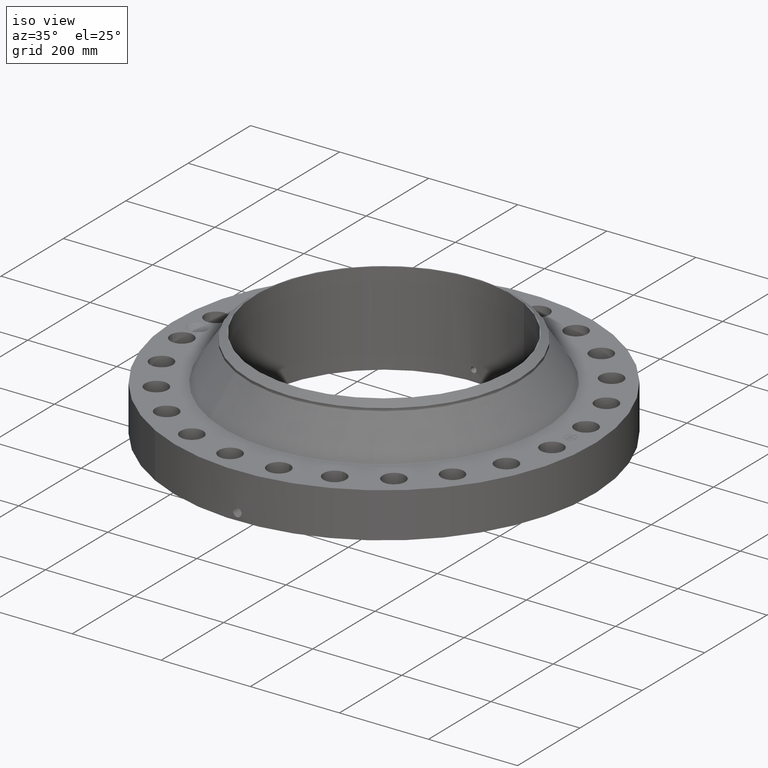
[diagram: clean part render]
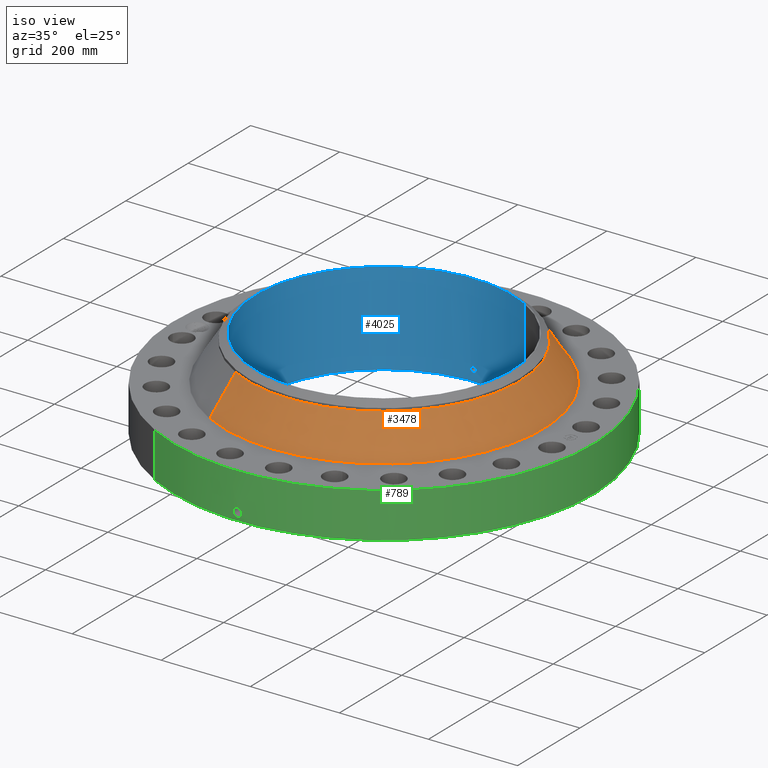
[diagram: same view with three faces highlighted in distinct colors, each labeled with its STEP entity id]
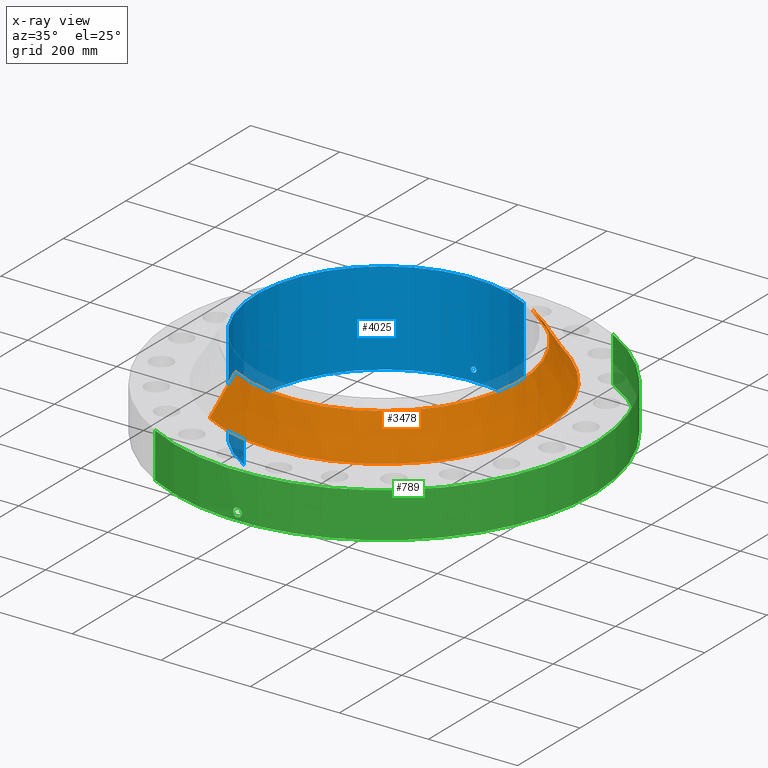
[diagram: x-ray of the same camera — body ghosted, the three highlighted faces saturated]
A machine part, iso view with three faces highlighted in distinct colors.
The next image is the same camera in x-ray (body ghosted, the three faces saturated) — at least one of them is partly hidden behind the body in this view.
Their STEP definitions:

[orange] entity #3478 — the highlighted conical surface has half-angle 32.809 deg.
#2839=AXIS2_PLACEMENT_3D('Circle Axis2P3D',#2837,#2838,$) ;
#3451=AXIS2_PLACEMENT_3D('Cone Axis2P3D',#3448,#3449,#3450) ;
#3462=AXIS2_PLACEMENT_3D('Circle Axis2P3D',#3460,#3461,$) ;
#2834=CARTESIAN_POINT('Vertex',(6.75489308198,12.364748848,4.30498001669)) ;
#2837=CARTESIAN_POINT('Axis2P3D Location',(0.,0.,4.30498001669)) ;
#2841=CARTESIAN_POINT('Vertex',(-6.75489308198,-12.364748848,4.30498001669)) ;
#3448=CARTESIAN_POINT('Axis2P3D Location',(0.,0.,7.54627800773)) ;
#3453=CARTESIAN_POINT('Line Origine',(6.25399977263,11.4478697954,5.92562901221)) ;
#3457=CARTESIAN_POINT('Vertex',(5.75310646327,10.5309907427,7.54627800773)) ;
#3460=CARTESIAN_POINT('Axis2P3D Location',(0.,0.,7.54627800773)) ;
#3464=CARTESIAN_POINT('Vertex',(-5.75310646327,-10.5309907427,7.54627800773)) ;
#3467=CARTESIAN_POINT('Line Origine',(-6.25399977263,-11.4478697954,5.92562901221)) ;
#2838=DIRECTION('Axis2P3D Direction',(0.,0.,-0.0393700787402)) ;
#3449=DIRECTION('Axis2P3D Direction',(0.,0.,-0.0393700787402)) ;
#3450=DIRECTION('Axis2P3D XDirection',(-0.0188750212049,-0.0345504945626,0.)) ;
#3454=DIRECTION('Vector Direction',(0.010227113034,0.0187206048374,-0.0330900017153)) ;
#3461=DIRECTION('Axis2P3D Direction',(0.,0.,-0.0393700787402)) ;
#3468=DIRECTION('Vector Direction',(-0.010227113034,-0.0187206048374,-0.0330900017153)) ;
#3455=VECTOR('Line Direction',#3454,0.0393700787402) ;
#3469=VECTOR('Line Direction',#3468,0.0393700787402) ;
#3473=ORIENTED_EDGE('',*,*,#2843,.F.) ;
#3474=ORIENTED_EDGE('',*,*,#3459,.T.) ;
#3475=ORIENTED_EDGE('',*,*,#3466,.T.) ;
#3476=ORIENTED_EDGE('',*,*,#3471,.F.) ;
#3478=ADVANCED_FACE('PartBody',(#3477),#3452,.T.) ;
#2840=CIRCLE('generated circle',#2839,14.0895562252) ;
#3463=CIRCLE('generated circle',#3462,12.) ;
#3452=CONICAL_SURFACE('Cone',#3451,12.,0.572616692114) ;
#2843=EDGE_CURVE('',#2835,#2842,#2840,.T.) ;
#3459=EDGE_CURVE('',#2835,#3458,#3456,.F.) ;
#3466=EDGE_CURVE('',#3458,#3465,#3463,.T.) ;
#3471=EDGE_CURVE('',#2842,#3465,#3470,.F.) ;
#3472=EDGE_LOOP('',(#3473,#3474,#3475,#3476)) ;
#3477=FACE_OUTER_BOUND('',#3472,.T.) ;
#3456=LINE('Line',#3453,#3455) ;
#3470=LINE('Line',#3467,#3469) ;
#2835=VERTEX_POINT('',#2834) ;
#2842=VERTEX_POINT('',#2841) ;
#3458=VERTEX_POINT('',#3457) ;
#3465=VERTEX_POINT('',#3464) ;

[blue] entity #4025 — the highlighted cylindrical surface (partial cylindrical patch) has radius 287.325 mm, axis along (0, 0, -1).
#3181=AXIS2_PLACEMENT_3D('Circle Axis2P3D',#3179,#3180,$) ;
#3902=AXIS2_PLACEMENT_3D('Cylinder Axis2P3D',#3899,#3900,#3901) ;
#3974=AXIS2_PLACEMENT_3D('Circle Axis2P3D',#3972,#3973,$) ;
#3174=CARTESIAN_POINT('Vertex',(5.42326169271,9.92721394014,-7.83275456743E-014)) ;
#3176=CARTESIAN_POINT('Vertex',(-5.42326169271,-9.92721394014,-7.83275456743E-014)) ;
#3179=CARTESIAN_POINT('Axis2P3D Location',(0.,0.,0.)) ;
#3899=CARTESIAN_POINT('Axis2P3D Location',(0.,0.,4.12500000002)) ;
#3908=CARTESIAN_POINT('Vertex',(5.42326169271,9.92721394014,8.25000000003)) ;
#3910=CARTESIAN_POINT('Vertex',(-5.42326169271,-9.92721394014,8.25000000003)) ;
#3913=CARTESIAN_POINT('Line Origine',(5.42326169271,9.92721394014,4.12500000002)) ;
#3918=CARTESIAN_POINT('Line Origine',(-5.42326169271,-9.92721394014,4.12500000002)) ;
#3972=CARTESIAN_POINT('Axis2P3D Location',(0.,0.,8.25000000003)) ;
#3984=CARTESIAN_POINT('Control Point',(0.219395640473,11.3098722165,1.05985638466)) ;
#3985=CARTESIAN_POINT('Control Point',(0.194442717923,11.3103562682,1.10553240301)) ;
#3986=CARTESIAN_POINT('Control Point',(0.157603929435,11.3110020461,1.14471334336)) ;
#3987=CARTESIAN_POINT('Control Point',(0.111104547909,11.3116301275,1.17324454069)) ;
#3988=CARTESIAN_POINT('Control Point',(0.0336685368016,11.3121298317,1.19588328385)) ;
#3989=CARTESIAN_POINT('Control Point',(-0.0446767041997,11.3119571131,1.18805560118)) ;
#3990=CARTESIAN_POINT('Control Point',(-0.0703080519625,11.3118230335,1.18204197647)) ;
#3991=CARTESIAN_POINT('Control Point',(-0.143966159116,11.3112305629,1.15420631029)) ;
#3992=CARTESIAN_POINT('Control Point',(-0.203255044637,11.3102635705,1.09948508971)) ;
#3993=CARTESIAN_POINT('Control Point',(-0.232218016883,11.3096294446,1.05324118846)) ;
#3994=CARTESIAN_POINT('Control Point',(-0.25584193263,11.3091083033,0.975096303424)) ;
#3995=CARTESIAN_POINT('Control Point',(-0.248280257416,11.3092749771,0.8957363549)) ;
#3996=CARTESIAN_POINT('Control Point',(-0.242046540814,11.3094143696,0.869177906278)) ;
#3997=CARTESIAN_POINT('Control Point',(-0.232313923617,11.30962162,0.843790374032)) ;
#3998=CARTESIAN_POINT('Control Point',(-0.219395640473,11.3098722165,0.820143615352)) ;
#3999=CARTESIAN_POINT('Vertex',(0.219395640473,11.3098722165,1.05985638466)) ;
#4001=CARTESIAN_POINT('Vertex',(-0.219395640473,11.3098722165,0.820143615352)) ;
#4005=CARTESIAN_POINT('Control Point',(-0.219395640473,11.3098722165,0.820143615352)) ;
#4006=CARTESIAN_POINT('Control Point',(-0.194442717953,11.3103562682,0.774467597057)) ;
#4007=CARTESIAN_POINT('Control Point',(-0.157603929523,11.3110020461,0.735286656737)) ;
#4008=CARTESIAN_POINT('Control Point',(-0.111104547785,11.3116301275,0.706755459278)) ;
#4009=CARTESIAN_POINT('Control Point',(-0.0336685367192,11.3121298317,0.684116716154)) ;
#4010=CARTESIAN_POINT('Control Point',(0.0446767042391,11.3119571131,0.691944398831)) ;
#4011=CARTESIAN_POINT('Control Point',(0.070308051926,11.3118230335,0.697958023526)) ;
#4012=CARTESIAN_POINT('Control Point',(0.143966159112,11.3112305629,0.72579368971)) ;
#4013=CARTESIAN_POINT('Control Point',(0.203255044653,11.3102635705,0.780514910312)) ;
#4014=CARTESIAN_POINT('Control Point',(0.232218016877,11.3096294446,0.826758811525)) ;
#4015=CARTESIAN_POINT('Control Point',(0.255841932617,11.3091083033,0.904903696527)) ;
#4016=CARTESIAN_POINT('Control Point',(0.248280257425,11.3092749771,0.984263645013)) ;
#4017=CARTESIAN_POINT('Control Point',(0.24204654078,11.3094143696,1.01082209382)) ;
#4018=CARTESIAN_POINT('Control Point',(0.232313923594,11.30962162,1.03620962602)) ;
#4019=CARTESIAN_POINT('Control Point',(0.219395640473,11.3098722165,1.05985638466)) ;
#3180=DIRECTION('Axis2P3D Direction',(0.,0.,-0.0393700787402)) ;
#3900=DIRECTION('Axis2P3D Direction',(0.,0.,-0.0393700787402)) ;
#3901=DIRECTION('Axis2P3D XDirection',(-0.0188750212049,-0.0345504945626,0.)) ;
#3914=DIRECTION('Vector Direction',(0.,0.,-0.0393700787402)) ;
#3919=DIRECTION('Vector Direction',(0.,0.,-0.0393700787402)) ;
#3973=DIRECTION('Axis2P3D Direction',(0.,0.,-0.0393700787402)) ;
#3915=VECTOR('Line Direction',#3914,0.0393700787402) ;
#3920=VECTOR('Line Direction',#3919,0.0393700787402) ;
#3978=ORIENTED_EDGE('',*,*,#3976,.F.) ;
#3979=ORIENTED_EDGE('',*,*,#3922,.T.) ;
#3980=ORIENTED_EDGE('',*,*,#3183,.T.) ;
#3981=ORIENTED_EDGE('',*,*,#3917,.F.) ;
#4022=ORIENTED_EDGE('',*,*,#4003,.F.) ;
#4023=ORIENTED_EDGE('',*,*,#4020,.F.) ;
#4024=FACE_BOUND('',#4021,.T.) ;
#4025=ADVANCED_FACE('PartBody',(#3982,#4024),#3903,.F.) ;
#3983=B_SPLINE_CURVE_WITH_KNOTS('',5,(#3984,#3985,#3986,#3987,#3988,#3989,#3990,#3991,#3992,#3993,#3994,#3995,#3996,#3997,#3998),.UNSPECIFIED.,.F.,.U.,(6,3,3,3,6),(0.,9.34841004899,14.0230093066,23.3730560568,28.2127860607),.UNSPECIFIED.) ;
#4004=B_SPLINE_CURVE_WITH_KNOTS('',5,(#4005,#4006,#4007,#4008,#4009,#4010,#4011,#4012,#4013,#4014,#4015,#4016,#4017,#4018,#4019),.UNSPECIFIED.,.F.,.U.,(6,3,3,3,6),(0.,9.34841003778,14.0230092989,23.373056051,28.2127860465),.UNSPECIFIED.) ;
#3182=CIRCLE('generated circle',#3181,11.312) ;
#3975=CIRCLE('generated circle',#3974,11.312) ;
#3903=CYLINDRICAL_SURFACE('generated cylinder',#3902,11.312) ;
#3183=EDGE_CURVE('',#3177,#3175,#3182,.T.) ;
#3917=EDGE_CURVE('',#3909,#3175,#3916,.T.) ;
#3922=EDGE_CURVE('',#3911,#3177,#3921,.T.) ;
#3976=EDGE_CURVE('',#3911,#3909,#3975,.T.) ;
#4003=EDGE_CURVE('',#4000,#4002,#3983,.T.) ;
#4020=EDGE_CURVE('',#4002,#4000,#4004,.T.) ;
#3977=EDGE_LOOP('',(#3978,#3979,#3980,#3981)) ;
#4021=EDGE_LOOP('',(#4022,#4023)) ;
#3982=FACE_OUTER_BOUND('',#3977,.T.) ;
#3916=LINE('Line',#3913,#3915) ;
#3921=LINE('Line',#3918,#3920) ;
#3175=VERTEX_POINT('',#3174) ;
#3177=VERTEX_POINT('',#3176) ;
#3909=VERTEX_POINT('',#3908) ;
#3911=VERTEX_POINT('',#3910) ;
#4000=VERTEX_POINT('',#3999) ;
#4002=VERTEX_POINT('',#4001) ;

[green] entity #789 — the highlighted cylindrical surface (partial cylindrical patch) has radius 469.9 mm, axis along (0, 0, -1).
#38=AXIS2_PLACEMENT_3D('Cylinder Axis2P3D',#35,#36,#37) ;
#169=AXIS2_PLACEMENT_3D('Circle Axis2P3D',#167,#168,$) ;
#693=AXIS2_PLACEMENT_3D('Circle Axis2P3D',#691,#692,$) ;
#35=CARTESIAN_POINT('Axis2P3D Location',(0.,0.,4.12500000002)) ;
#44=CARTESIAN_POINT('Vertex',(-8.86937246421,-16.235277395,0.250000000001)) ;
#46=CARTESIAN_POINT('Vertex',(8.86937246421,16.235277395,0.250000000001)) ;
#49=CARTESIAN_POINT('Line Origine',(-8.86937246421,-16.235277395,2.25000000001)) ;
#53=CARTESIAN_POINT('Vertex',(-8.86937246421,-16.235277395,4.25000000002)) ;
#60=CARTESIAN_POINT('Vertex',(8.86937246421,16.235277395,4.25000000002)) ;
#63=CARTESIAN_POINT('Line Origine',(8.86937246421,16.235277395,2.25000000001)) ;
#167=CARTESIAN_POINT('Axis2P3D Location',(0.,0.,0.250000000001)) ;
#691=CARTESIAN_POINT('Axis2P3D Location',(0.,0.,4.25000000002)) ;
#703=CARTESIAN_POINT('Control Point',(0.000715896612434,-18.4999999862,1.29411846169)) ;
#704=CARTESIAN_POINT('Control Point',(0.0187690338096,-18.4999992876,1.29408201303)) ;
#705=CARTESIAN_POINT('Control Point',(0.0368190531843,-18.4999719594,1.29266143022)) ;
#706=CARTESIAN_POINT('Control Point',(0.054655442336,-18.4999192643,1.28987343585)) ;
#707=CARTESIAN_POINT('Vertex',(0.000715605657762,-18.4999999862,1.29411851083)) ;
#709=CARTESIAN_POINT('Vertex',(0.0546469351871,-18.4999195393,1.28987478304)) ;
#713=CARTESIAN_POINT('Control Point',(0.054646841952,-18.4999192897,1.28987424347)) ;
#714=CARTESIAN_POINT('Control Point',(0.0953263011078,-18.4997991268,1.2855492369)) ;
#715=CARTESIAN_POINT('Control Point',(0.135394458604,-18.4995414291,1.27383673999)) ;
#716=CARTESIAN_POINT('Control Point',(0.172335301089,-18.4991972947,1.25548810309)) ;
#717=CARTESIAN_POINT('Vertex',(0.172335301089,-18.4991972947,1.25548810309)) ;
#721=CARTESIAN_POINT('Control Point',(0.0312030034983,-18.4999736858,0.531203410469)) ;
#722=CARTESIAN_POINT('Control Point',(0.0718450460166,-18.4999051368,0.536341597849)) ;
#723=CARTESIAN_POINT('Control Point',(0.111695389229,-18.4997263163,0.546733387406)) ;
#724=CARTESIAN_POINT('Control Point',(0.149822245043,-18.4994472432,0.562224274325)) ;
#725=CARTESIAN_POINT('Control Point',(0.239726261629,-18.4985677678,0.613168772632)) ;
#726=CARTESIAN_POINT('Control Point',(0.308947751189,-18.49748029,0.690005188162)) ;
#727=CARTESIAN_POINT('Control Point',(0.34088171424,-18.4968776494,0.743751820246)) ;
#728=CARTESIAN_POINT('Control Point',(0.375548385646,-18.4961922673,0.841053911785)) ;
#729=CARTESIAN_POINT('Control Point',(0.377925518428,-18.49613818,0.942360608264)) ;
#730=CARTESIAN_POINT('Control Point',(0.373557802153,-18.4962295978,0.982896088809)) ;
#731=CARTESIAN_POINT('Control Point',(0.350960638943,-18.4966900038,1.07576397076)) ;
#732=CARTESIAN_POINT('Control Point',(0.30110541653,-18.4975866111,1.15736465334)) ;
#733=CARTESIAN_POINT('Control Point',(0.264116363799,-18.4981861301,1.19848304343)) ;
#734=CARTESIAN_POINT('Control Point',(0.220404953103,-18.4987494862,1.23161174716)) ;
#735=CARTESIAN_POINT('Control Point',(0.172335301089,-18.4991972947,1.25548810309)) ;
#736=CARTESIAN_POINT('Vertex',(0.0312030034982,-18.4999736858,0.531203410469)) ;
#740=CARTESIAN_POINT('Control Point',(0.0312030034983,-18.4999736858,0.531203410469)) ;
#741=CARTESIAN_POINT('Control Point',(0.0207974037432,-18.4999912364,0.530876622291)) ;
#742=CARTESIAN_POINT('Control Point',(0.0103835541371,-18.5000000016,0.530933889407)) ;
#743=CARTESIAN_POINT('Control Point',(-2.7287835428E-006,-18.5000000001,0.531374667806)) ;
#744=CARTESIAN_POINT('Vertex',(-2.72878354684E-006,-18.5000000001,0.531374667806)) ;
#748=CARTESIAN_POINT('Control Point',(-0.192470931564,-18.4989987552,0.587695660475)) ;
#749=CARTESIAN_POINT('Control Point',(-0.148945882507,-18.4994516071,0.562206680478)) ;
#750=CARTESIAN_POINT('Control Point',(-0.101106106873,-18.4998134468,0.543838011043)) ;
#751=CARTESIAN_POINT('Control Point',(-0.0508022021685,-18.4999999926,0.533530520618)) ;
#752=CARTESIAN_POINT('Control Point',(-2.72878352637E-006,-18.5000000001,0.531374667806)) ;
#753=CARTESIAN_POINT('Vertex',(-0.192470931564,-18.4989987552,0.587695660475)) ;
#757=CARTESIAN_POINT('Control Point',(-0.192470931564,-18.4989987552,0.587695660475)) ;
#758=CARTESIAN_POINT('Control Point',(-0.249191019794,-18.4984086168,0.620911867937)) ;
#759=CARTESIAN_POINT('Control Point',(-0.299060397389,-18.4976723445,0.665463330238)) ;
#760=CARTESIAN_POINT('Control Point',(-0.338923008855,-18.4969275001,0.719717175208)) ;
#761=CARTESIAN_POINT('Control Point',(-0.382764224107,-18.4960477714,0.81805117345)) ;
#762=CARTESIAN_POINT('Control Point',(-0.391048711251,-18.4958654701,0.923323111754)) ;
#763=CARTESIAN_POINT('Control Point',(-0.388831077366,-18.4959136413,0.963549344864)) ;
#764=CARTESIAN_POINT('Control Point',(-0.369138739447,-18.4963338364,1.06654327373)) ;
#765=CARTESIAN_POINT('Control Point',(-0.315552862203,-18.4973579272,1.1572753263)) ;
#766=CARTESIAN_POINT('Control Point',(-0.271005129485,-18.498119989,1.20487842567)) ;
#767=CARTESIAN_POINT('Control Point',(-0.190251087593,-18.4991637675,1.26077011296)) ;
#768=CARTESIAN_POINT('Control Point',(-0.0983770085628,-18.4997807413,1.28790815228)) ;
#769=CARTESIAN_POINT('Control Point',(-0.0656648821896,-18.4999278119,1.29368791324)) ;
#770=CARTESIAN_POINT('Control Point',(-0.0326810870128,-18.5000000458,1.2957565762)) ;
#771=CARTESIAN_POINT('Control Point',(2.58579355705E-005,-18.5000000001,1.29415298429)) ;
#772=CARTESIAN_POINT('Vertex',(2.58579355483E-005,-18.5000000001,1.29415298429)) ;
#776=CARTESIAN_POINT('Control Point',(0.00071560564832,-18.4999999862,1.29411851081)) ;
#777=CARTESIAN_POINT('Control Point',(0.000370756442934,-18.4999999996,1.29413607425)) ;
#778=CARTESIAN_POINT('Control Point',(2.58579404216E-005,-18.5000000001,1.29415298429)) ;
#36=DIRECTION('Axis2P3D Direction',(0.,0.,-0.0393700787402)) ;
#37=DIRECTION('Axis2P3D XDirection',(0.0188750212049,0.0345504945626,0.)) ;
#50=DIRECTION('Vector Direction',(0.,0.,-0.0393700787402)) ;
#64=DIRECTION('Vector Direction',(0.,0.,-0.0393700787402)) ;
#168=DIRECTION('Axis2P3D Direction',(0.,0.,-0.0393700787402)) ;
#692=DIRECTION('Axis2P3D Direction',(0.,0.,-0.0393700787402)) ;
#51=VECTOR('Line Direction',#50,0.0393700787402) ;
#65=VECTOR('Line Direction',#64,0.0393700787402) ;
#697=ORIENTED_EDGE('',*,*,#171,.F.) ;
#698=ORIENTED_EDGE('',*,*,#67,.T.) ;
#699=ORIENTED_EDGE('',*,*,#695,.T.) ;
#700=ORIENTED_EDGE('',*,*,#55,.F.) ;
#781=ORIENTED_EDGE('',*,*,#711,.T.) ;
#782=ORIENTED_EDGE('',*,*,#719,.T.) ;
#783=ORIENTED_EDGE('',*,*,#738,.F.) ;
#784=ORIENTED_EDGE('',*,*,#746,.T.) ;
#785=ORIENTED_EDGE('',*,*,#755,.F.) ;
#786=ORIENTED_EDGE('',*,*,#774,.T.) ;
#787=ORIENTED_EDGE('',*,*,#779,.F.) ;
#788=FACE_BOUND('',#780,.T.) ;
#789=ADVANCED_FACE('PartBody',(#701,#788),#39,.T.) ;
#702=B_SPLINE_CURVE_WITH_KNOTS('',3,(#703,#704,#705,#706),.UNSPECIFIED.,.F.,.U.,(4,4),(34.6168172613,36.6196409816),.UNSPECIFIED.) ;
#712=B_SPLINE_CURVE_WITH_KNOTS('',3,(#713,#714,#715,#716),.UNSPECIFIED.,.F.,.U.,(4,4),(0.,4.59668714663),.UNSPECIFIED.) ;
#720=B_SPLINE_CURVE_WITH_KNOTS('',5,(#721,#722,#723,#724,#725,#726,#727,#728,#729,#730,#731,#732,#733,#734,#735),.UNSPECIFIED.,.F.,.U.,(6,3,3,3,6),(0.,7.11929030695,18.0049270588,25.340351175,35.3094956276),.UNSPECIFIED.) ;
#739=B_SPLINE_CURVE_WITH_KNOTS('',3,(#740,#741,#742,#743),.UNSPECIFIED.,.F.,.U.,(4,4),(0.,1.08548804539),.UNSPECIFIED.) ;
#747=B_SPLINE_CURVE_WITH_KNOTS('',4,(#748,#749,#750,#751,#752),.UNSPECIFIED.,.F.,.U.,(5,5),(0.,7.07885216235),.UNSPECIFIED.) ;
#756=B_SPLINE_CURVE_WITH_KNOTS('',5,(#757,#758,#759,#760,#761,#762,#763,#764,#765,#766,#767,#768,#769,#770,#771),.UNSPECIFIED.,.F.,.U.,(6,3,3,3,6),(0.,11.5310929592,18.6347138987,30.1344178111,36.2480248281),.UNSPECIFIED.) ;
#775=B_SPLINE_CURVE_WITH_KNOTS('',2,(#776,#777,#778),.UNSPECIFIED.,.F.,.U.,(3,3),(1.01633898163,1.04212645876),.UNSPECIFIED.) ;
#170=CIRCLE('generated circle',#169,18.5000000001) ;
#694=CIRCLE('generated circle',#693,18.5000000001) ;
#39=CYLINDRICAL_SURFACE('generated cylinder',#38,18.5000000001) ;
#55=EDGE_CURVE('',#45,#54,#52,.F.) ;
#67=EDGE_CURVE('',#47,#61,#66,.F.) ;
#171=EDGE_CURVE('',#47,#45,#170,.T.) ;
#695=EDGE_CURVE('',#61,#54,#694,.T.) ;
#711=EDGE_CURVE('',#708,#710,#702,.T.) ;
#719=EDGE_CURVE('',#710,#718,#712,.T.) ;
#738=EDGE_CURVE('',#737,#718,#720,.T.) ;
#746=EDGE_CURVE('',#737,#745,#739,.T.) ;
#755=EDGE_CURVE('',#754,#745,#747,.T.) ;
#774=EDGE_CURVE('',#754,#773,#756,.T.) ;
#779=EDGE_CURVE('',#708,#773,#775,.T.) ;
#696=EDGE_LOOP('',(#697,#698,#699,#700)) ;
#780=EDGE_LOOP('',(#781,#782,#783,#784,#785,#786,#787)) ;
#701=FACE_OUTER_BOUND('',#696,.T.) ;
#52=LINE('Line',#49,#51) ;
#66=LINE('Line',#63,#65) ;
#45=VERTEX_POINT('',#44) ;
#47=VERTEX_POINT('',#46) ;
#54=VERTEX_POINT('',#53) ;
#61=VERTEX_POINT('',#60) ;
#708=VERTEX_POINT('',#707) ;
#710=VERTEX_POINT('',#709) ;
#718=VERTEX_POINT('',#717) ;
#737=VERTEX_POINT('',#736) ;
#745=VERTEX_POINT('',#744) ;
#754=VERTEX_POINT('',#753) ;
#773=VERTEX_POINT('',#772) ;